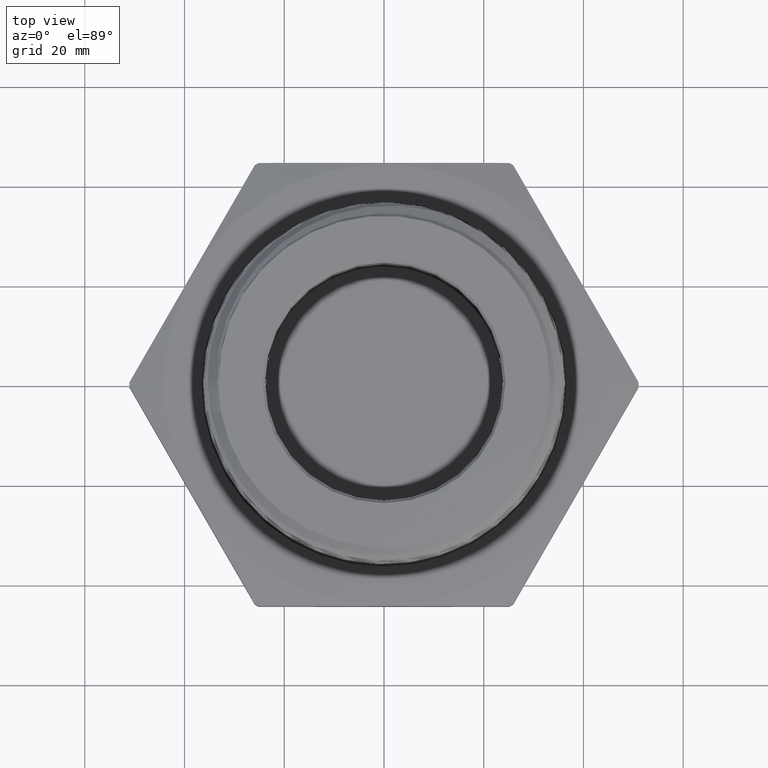
[diagram: clean part render]
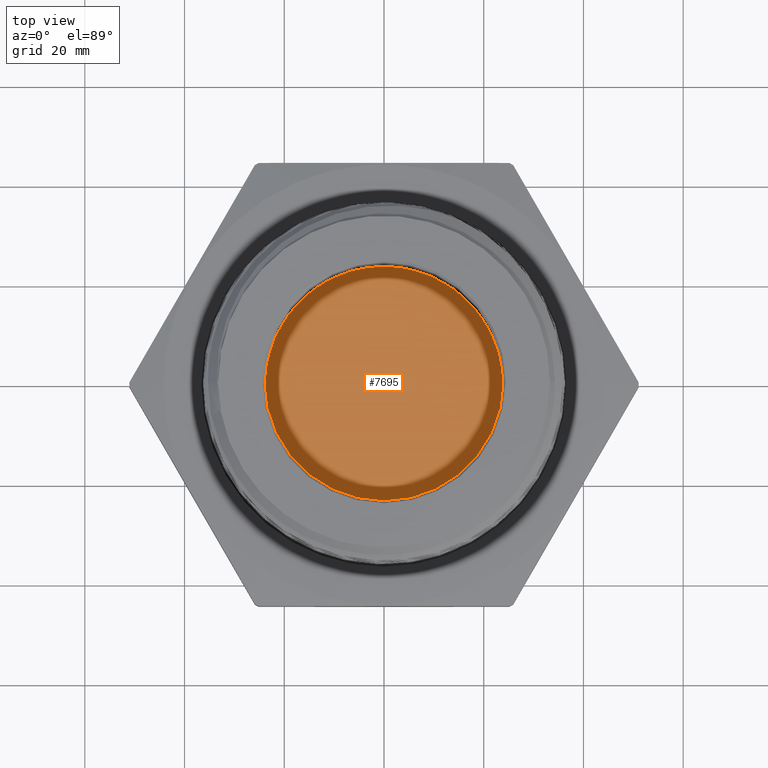
[diagram: same view with one face highlighted and labeled with its STEP entity id]
A machine part, top view. The second image highlights one B-rep face of the part: STEP entity #7695.
In plain terms, the highlighted planar face has unit normal (0, 0, -1).
Its self-contained STEP definition (entity closure, byte-faithful):
#405 = ORIENTED_EDGE ( 'NONE', *, *, #4882, .F. ) ;
#406 = ORIENTED_EDGE ( 'NONE', *, *, #4875, .F. ) ;
#572 = VERTEX_POINT ( 'NONE', #6631 ) ;
#580 = VERTEX_POINT ( 'NONE', #6639 ) ;
#1261 = CARTESIAN_POINT ( 'NONE',  ( 0.0000000000000000000, 0.0000000000000000000, 0.0000000000000000000 ) ) ;
#1262 = DIRECTION ( 'NONE',  ( 0.0000000000000000000, 0.0000000000000000000, 1.000000000000000000 ) ) ;
#1263 = DIRECTION ( 'NONE',  ( 1.000000000000000000, 0.0000000000000000000, 0.0000000000000000000 ) ) ;
#1301 = CARTESIAN_POINT ( 'NONE',  ( 0.0000000000000000000, 0.0000000000000000000, 0.0000000000000000000 ) ) ;
#1302 = DIRECTION ( 'NONE',  ( 0.0000000000000000000, 0.0000000000000000000, 1.000000000000000000 ) ) ;
#1303 = DIRECTION ( 'NONE',  ( 1.000000000000000000, 0.0000000000000000000, 0.0000000000000000000 ) ) ;
#3172 = CARTESIAN_POINT ( 'NONE',  ( 0.0000000000000000000, 0.0000000000000000000, 0.0000000000000000000 ) ) ;
#3177 = PLANE ( 'NONE',  #7754 ) ;
#3181 = DIRECTION ( 'NONE',  ( 0.0000000000000000000, 0.0000000000000000000, 1.000000000000000000 ) ) ;
#3183 = DIRECTION ( 'NONE',  ( 1.000000000000000000, 0.0000000000000000000, -0.0000000000000000000 ) ) ;
#3779 = FACE_OUTER_BOUND ( 'NONE', #5592, .T. ) ;
#4875 = EDGE_CURVE ( 'NONE', #572, #580, #5666, .T. ) ;
#4882 = EDGE_CURVE ( 'NONE', #580, #572, #5677, .T. ) ;
#4914 = AXIS2_PLACEMENT_3D ( 'NONE', #1301, #1302, #1303 ) ;
#4917 = AXIS2_PLACEMENT_3D ( 'NONE', #1261, #1262, #1263 ) ;
#5592 = EDGE_LOOP ( 'NONE', ( #406, #405 ) ) ;
#5666 = CIRCLE ( 'NONE', #4914, 0.9399999999999999500 ) ;
#5677 = CIRCLE ( 'NONE', #4917, 0.9399999999999999500 ) ;
#6631 = CARTESIAN_POINT ( 'NONE',  ( -0.9399999999999999500, 0.0000000000000000000, 0.0000000000000000000 ) ) ;
#6639 = CARTESIAN_POINT ( 'NONE',  ( 0.9399999999999999500, 1.151167991198511900E-016, 0.0000000000000000000 ) ) ;
#7695 = ADVANCED_FACE ( 'NONE', ( #3779 ), #3177, .F. ) ;
#7754 = AXIS2_PLACEMENT_3D ( 'NONE', #3172, #3181, #3183 ) ;